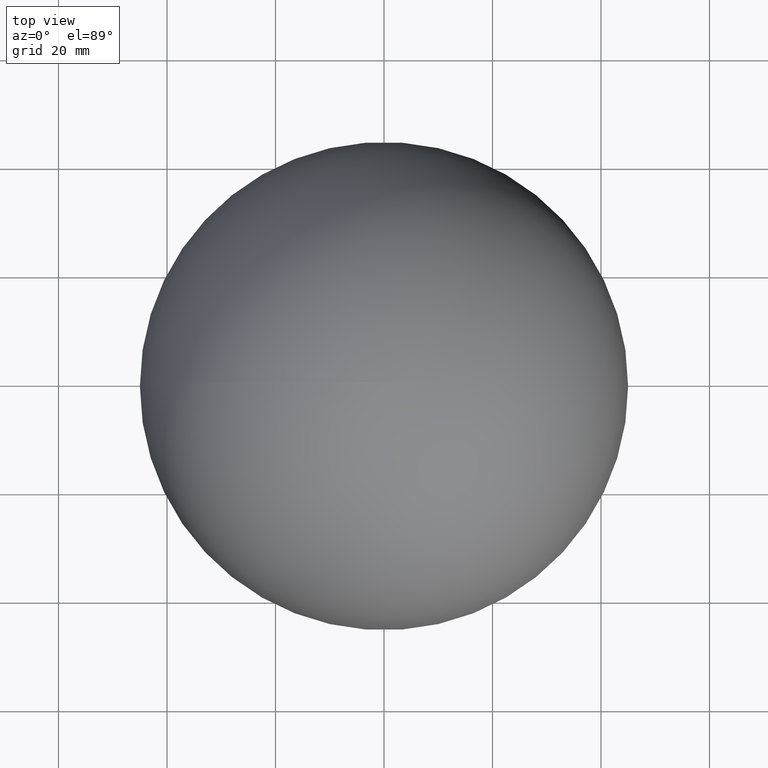
[diagram: clean part render]
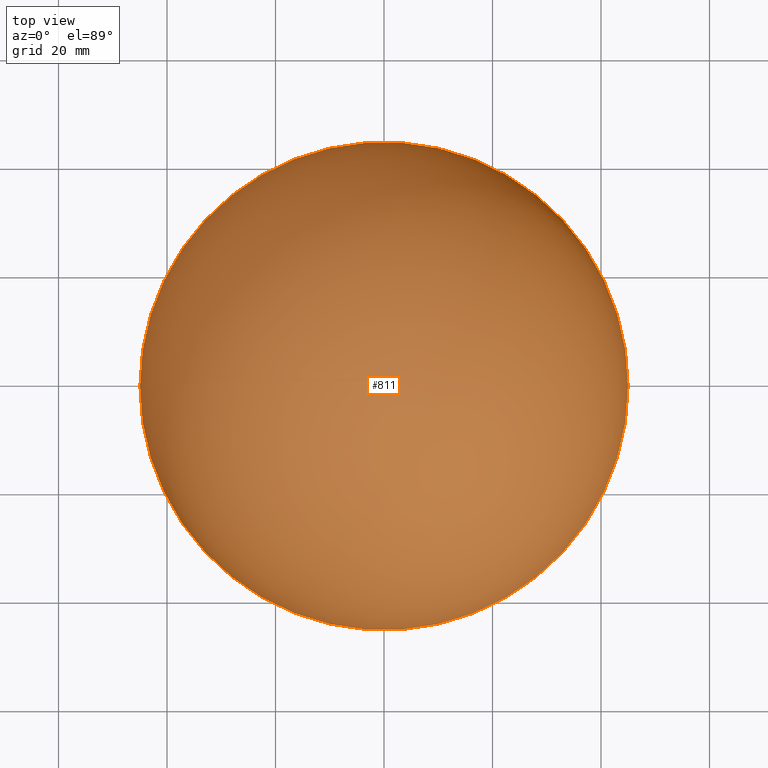
[diagram: same view with one face highlighted and labeled with its STEP entity id]
A machine part, top view. The second image highlights one B-rep face of the part: STEP entity #811.
In plain terms, the highlighted spherical surface has radius 45 mm.
Its self-contained STEP definition (entity closure, byte-faithful):
#457 = CARTESIAN_POINT ( 'NONE',  ( 0.000000000000000000, 0.000000000000000000, 0.000000000000000000 ) ) ;
#757 = VERTEX_POINT ( 'NONE', #6200 ) ;
#811 = ADVANCED_FACE ( 'NONE', ( #9048 ), #5212, .T. ) ;
#855 = ORIENTED_EDGE ( 'NONE', *, *, #4312, .F. ) ;
#884 = VERTEX_POINT ( 'NONE', #8836 ) ;
#1265 = EDGE_CURVE ( 'NONE', #757, #884, #5193, .T. ) ;
#1582 = CARTESIAN_POINT ( 'NONE',  ( 0.000000000000000000, 0.000000000000000000, 0.000000000000000000 ) ) ;
#2349 = DIRECTION ( 'NONE',  ( -1.000000000000000000, 0.000000000000000000, -6.982962677686266711E-15 ) ) ;
#2382 = CIRCLE ( 'NONE', #8256, 45.00000000000000000 ) ;
#4312 = EDGE_CURVE ( 'NONE', #884, #757, #2382, .T. ) ;
#4518 = AXIS2_PLACEMENT_3D ( 'NONE', #1582, #7118, #2349 ) ;
#4862 = DIRECTION ( 'NONE',  ( -1.000000000000000000, 0.000000000000000000, -6.982962677686265922E-15 ) ) ;
#5193 = CIRCLE ( 'NONE', #6851, 45.00000000000000000 ) ;
#5212 = SPHERICAL_SURFACE ( 'NONE', #4518, 45.00000000000000000 ) ;
#5349 = DIRECTION ( 'NONE',  ( 6.982962677686266711E-15, 0.000000000000000000, -1.000000000000000000 ) ) ;
#6200 = CARTESIAN_POINT ( 'NONE',  ( 45.00000000000000000, 5.510910596163089556E-15, 3.142333204958819767E-13 ) ) ;
#6851 = AXIS2_PLACEMENT_3D ( 'NONE', #8651, #8562, #7769 ) ;
#7118 = DIRECTION ( 'NONE',  ( -6.982962677686266711E-15, 0.000000000000000000, 1.000000000000000000 ) ) ;
#7761 = ORIENTED_EDGE ( 'NONE', *, *, #1265, .F. ) ;
#7769 = DIRECTION ( 'NONE',  ( -1.000000000000000000, 0.000000000000000000, -6.982962677686265922E-15 ) ) ;
#8256 = AXIS2_PLACEMENT_3D ( 'NONE', #457, #5349, #4862 ) ;
#8562 = DIRECTION ( 'NONE',  ( 6.982962677686266711E-15, 0.000000000000000000, -1.000000000000000000 ) ) ;
#8651 = CARTESIAN_POINT ( 'NONE',  ( 0.000000000000000000, 0.000000000000000000, 0.000000000000000000 ) ) ;
#8836 = CARTESIAN_POINT ( 'NONE',  ( -45.00000000000000000, 0.000000000000000000, -3.142333204958819767E-13 ) ) ;
#9048 = FACE_OUTER_BOUND ( 'NONE', #10143, .T. ) ;
#10143 = EDGE_LOOP ( 'NONE', ( #855, #7761 ) ) ;